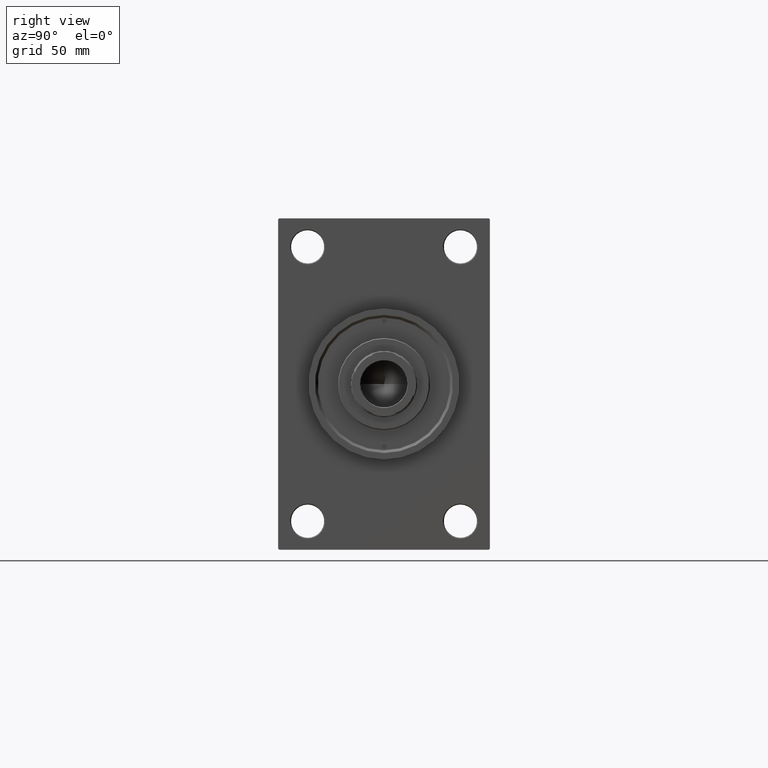
[diagram: clean part render]
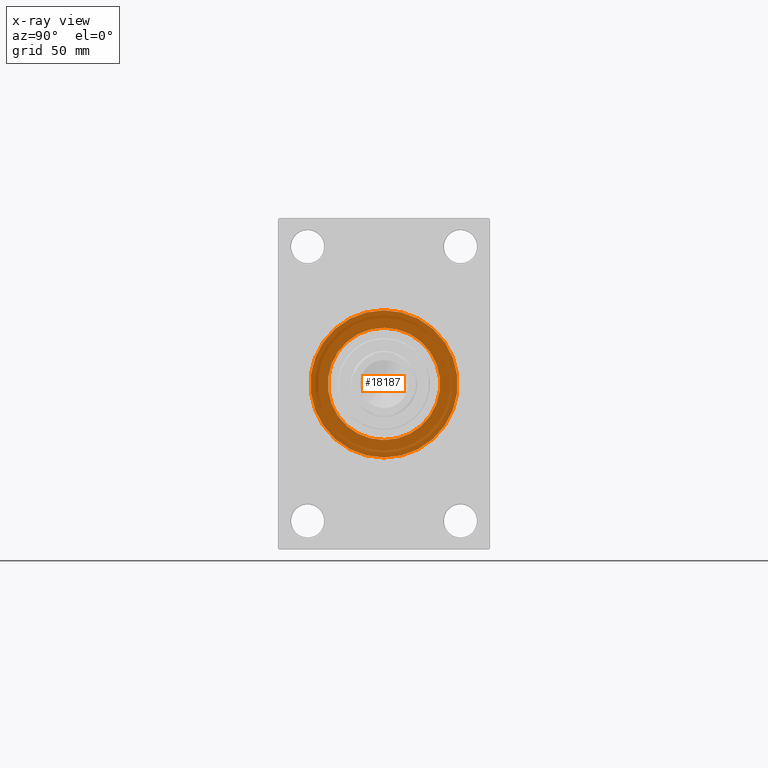
[diagram: x-ray — body ghosted, one internal face saturated and labeled with its STEP entity id]
A machine part, right view, then the same camera in x-ray: the body is ghosted and one INTERNAL B-rep face — a face not visible from any outside direction — is saturated and labeled: STEP entity #18187.
In plain terms, the highlighted planar face has unit normal (-1, 0, 0).
Its self-contained STEP definition (entity closure, byte-faithful):
#236 = CIRCLE ( 'NONE', #1036, 40.00000000000000000 ) ;
#1028 = DIRECTION ( 'NONE',  ( 1.000000000000000000, 0.000000000000000000, 0.000000000000000000 ) ) ;
#1036 = AXIS2_PLACEMENT_3D ( 'NONE', #12649, #1028, #15798 ) ;
#1134 = EDGE_LOOP ( 'NONE', ( #6134, #2913 ) ) ;
#2913 = ORIENTED_EDGE ( 'NONE', *, *, #45721, .F. ) ;
#2923 = DIRECTION ( 'NONE',  ( 0.000000000000000000, 0.000000000000000000, 1.000000000000000000 ) ) ;
#3919 = EDGE_CURVE ( 'NONE', #47249, #28431, #12482, .T. ) ;
#5404 = CARTESIAN_POINT ( 'NONE',  ( 215.0000000000000284, 2.296501982624201990E-15, -40.00000000000000000 ) ) ;
#5994 = DIRECTION ( 'NONE',  ( -1.000000000000000000, 0.000000000000000000, -0.000000000000000000 ) ) ;
#6134 = ORIENTED_EDGE ( 'NONE', *, *, #13168, .F. ) ;
#6838 = ORIENTED_EDGE ( 'NONE', *, *, #28331, .F. ) ;
#12482 = CIRCLE ( 'NONE', #32572, 30.50000000000000000 ) ;
#12621 = DIRECTION ( 'NONE',  ( 1.000000000000000000, 0.000000000000000000, 0.000000000000000000 ) ) ;
#12649 = CARTESIAN_POINT ( 'NONE',  ( 215.0000000000000284, -2.602085213965210642E-15, 0.000000000000000000 ) ) ;
#13026 = DIRECTION ( 'NONE',  ( 0.000000000000000000, 0.000000000000000000, 1.000000000000000000 ) ) ;
#13168 = EDGE_CURVE ( 'NONE', #14089, #41523, #25783, .T. ) ;
#14089 = VERTEX_POINT ( 'NONE', #27837 ) ;
#15011 = PLANE ( 'NONE',  #44807 ) ;
#15798 = DIRECTION ( 'NONE',  ( 0.000000000000000000, 0.000000000000000000, -1.000000000000000000 ) ) ;
#15933 = CARTESIAN_POINT ( 'NONE',  ( 215.0000000000000568, 0.000000000000000000, -30.50000000000000000 ) ) ;
#16535 = AXIS2_PLACEMENT_3D ( 'NONE', #31004, #12621, #42627 ) ;
#17436 = CARTESIAN_POINT ( 'NONE',  ( 215.0000000000000568, 0.000000000000000000, 0.000000000000000000 ) ) ;
#18187 = ADVANCED_FACE ( 'NONE', ( #34371, #37763 ), #15011, .T. ) ;
#18616 = CARTESIAN_POINT ( 'NONE',  ( 215.0000000000000568, 3.735172737399427541E-15, 30.50000000000000000 ) ) ;
#20279 = CARTESIAN_POINT ( 'NONE',  ( 215.0000000000000568, 0.000000000000000000, 0.000000000000000000 ) ) ;
#25710 = ORIENTED_EDGE ( 'NONE', *, *, #3919, .F. ) ;
#25783 = CIRCLE ( 'NONE', #16535, 40.00000000000000000 ) ;
#27837 = CARTESIAN_POINT ( 'NONE',  ( 215.0000000000000284, -2.602085213965210642E-15, 40.00000000000000000 ) ) ;
#28331 = EDGE_CURVE ( 'NONE', #28431, #47249, #44246, .T. ) ;
#28431 = VERTEX_POINT ( 'NONE', #18616 ) ;
#28601 = EDGE_LOOP ( 'NONE', ( #25710, #6838 ) ) ;
#31004 = CARTESIAN_POINT ( 'NONE',  ( 215.0000000000000284, -2.602085213965210642E-15, 0.000000000000000000 ) ) ;
#32572 = AXIS2_PLACEMENT_3D ( 'NONE', #20279, #5994, #13026 ) ;
#34126 = DIRECTION ( 'NONE',  ( -0.000000000000000000, 0.000000000000000000, 1.000000000000000000 ) ) ;
#34371 = FACE_BOUND ( 'NONE', #28601, .T. ) ;
#37525 = CARTESIAN_POINT ( 'NONE',  ( 215.0000000000000284, 0.000000000000000000, 0.000000000000000000 ) ) ;
#37763 = FACE_OUTER_BOUND ( 'NONE', #1134, .T. ) ;
#40680 = DIRECTION ( 'NONE',  ( -1.000000000000000000, 0.000000000000000000, -0.000000000000000000 ) ) ;
#41523 = VERTEX_POINT ( 'NONE', #5404 ) ;
#42627 = DIRECTION ( 'NONE',  ( 0.000000000000000000, 0.000000000000000000, -1.000000000000000000 ) ) ;
#44246 = CIRCLE ( 'NONE', #45802, 30.50000000000000000 ) ;
#44807 = AXIS2_PLACEMENT_3D ( 'NONE', #37525, #40680, #34126 ) ;
#45721 = EDGE_CURVE ( 'NONE', #41523, #14089, #236, .T. ) ;
#45802 = AXIS2_PLACEMENT_3D ( 'NONE', #17436, #46267, #2923 ) ;
#46267 = DIRECTION ( 'NONE',  ( -1.000000000000000000, 0.000000000000000000, -0.000000000000000000 ) ) ;
#47249 = VERTEX_POINT ( 'NONE', #15933 ) ;